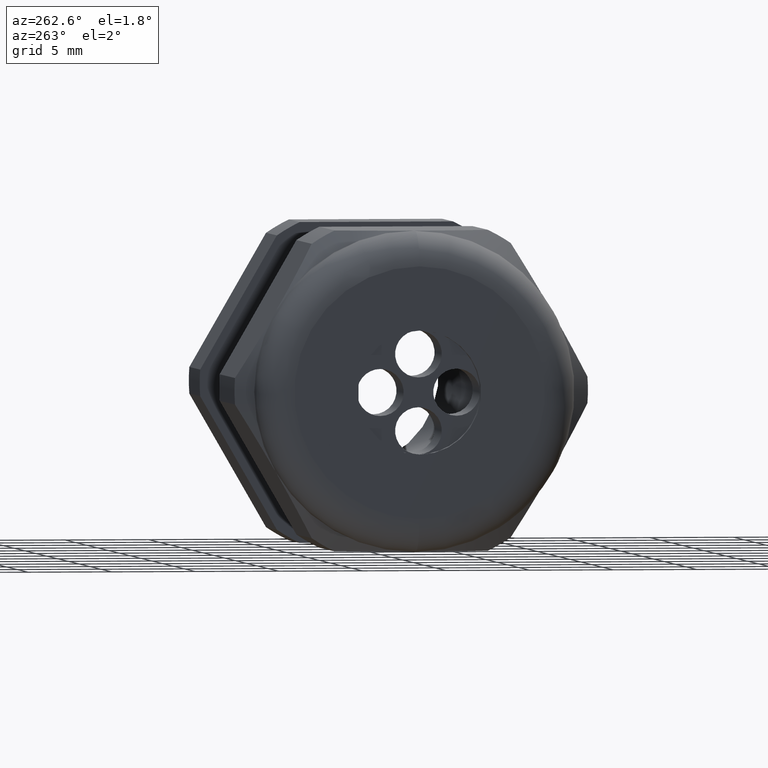
[diagram: clean part render]
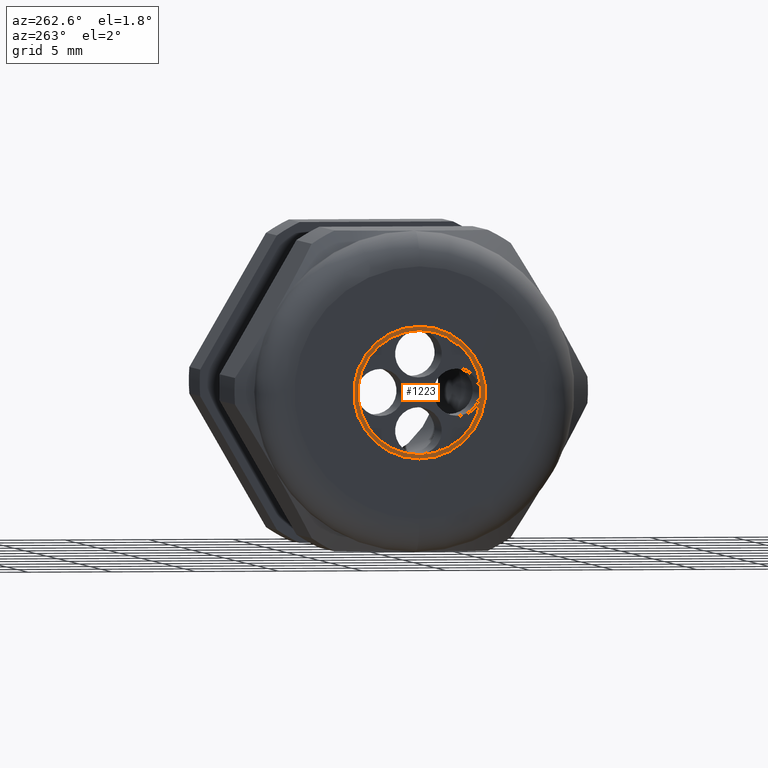
[diagram: same view with one face highlighted and labeled with its STEP entity id]
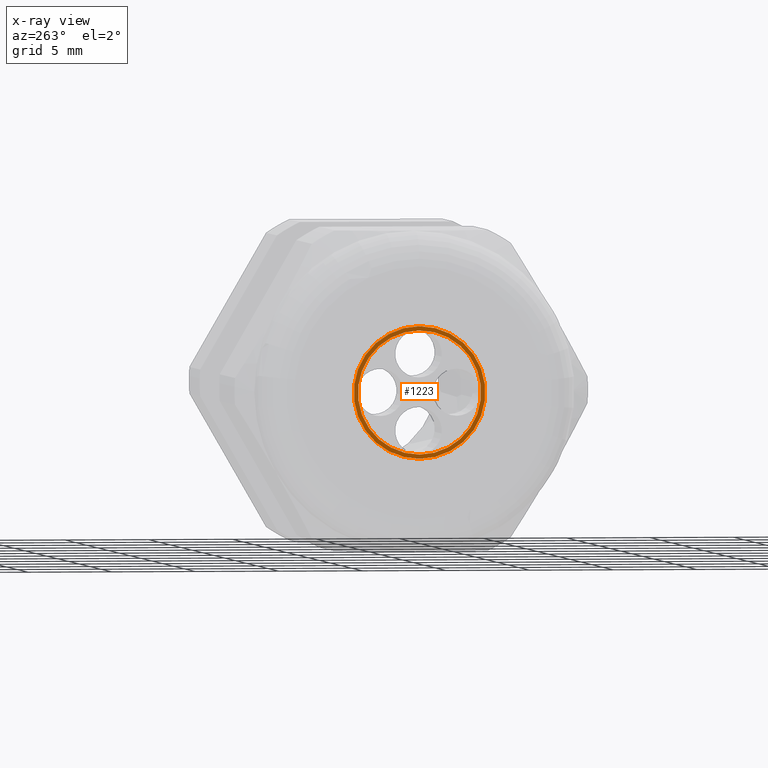
[diagram: x-ray of the same camera — body ghosted, the highlighted face saturated]
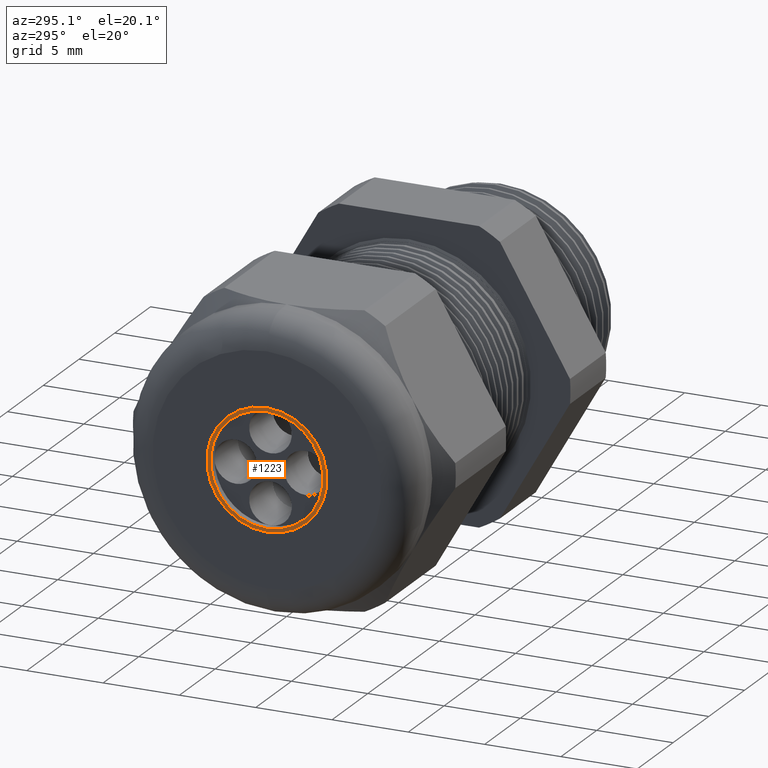
[diagram: same view with one face highlighted and labeled with its STEP entity id]
A machine part, auxiliary view. The second image highlights one B-rep face of the part: STEP entity #1223.
The next image is the same camera in x-ray: the body ghosted, the highlighted face saturated — about 0% of this face is hidden behind the body in this view.
A second angle (auxiliary view) of the same face is appended — the face is thin or edge-on in the first view.
In plain terms, the highlighted planar face has unit normal (-1, 0, 0).
Its self-contained STEP definition (entity closure, byte-faithful):
#1141 = EDGE_CURVE ( 'NONE', #1144, #1143, #3234, .T. ) ;
#1143 = VERTEX_POINT ( 'NONE', #3225 ) ;
#1144 = VERTEX_POINT ( 'NONE', #3224 ) ;
#1150 = VERTEX_POINT ( 'NONE', #3269 ) ;
#1199 = EDGE_CURVE ( 'NONE', #1143, #1144, #3322, .T. ) ;
#1208 = EDGE_CURVE ( 'NONE', #1150, #1209, #3354, .T. ) ;
#1209 = VERTEX_POINT ( 'NONE', #3355 ) ;
#1223 = ADVANCED_FACE ( 'NONE', ( #3401, #3400 ), #3399, .T. ) ;
#1224 = EDGE_LOOP ( 'NONE', ( #1233, #1235 ) ) ;
#1229 = EDGE_CURVE ( 'NONE', #1209, #1150, #3450, .T. ) ;
#1233 = ORIENTED_EDGE ( 'NONE', *, *, #1141, .T. ) ;
#1234 = EDGE_LOOP ( 'NONE', ( #1241, #1240 ) ) ;
#1235 = ORIENTED_EDGE ( 'NONE', *, *, #1199, .T. ) ;
#1240 = ORIENTED_EDGE ( 'NONE', *, *, #1208, .F. ) ;
#1241 = ORIENTED_EDGE ( 'NONE', *, *, #1229, .F. ) ;
#3224 = CARTESIAN_POINT ( 'NONE',  ( -1.289999999999999800, 0.0000000000000000000, 0.1550000000000000000 ) ) ;
#3225 = CARTESIAN_POINT ( 'NONE',  ( -1.289999999999999800, 1.898202538678397000E-017, -0.1550000000000000000 ) ) ;
#3230 = DIRECTION ( 'NONE',  ( 0.0000000000000000000, 0.0000000000000000000, 1.000000000000000000 ) ) ;
#3231 = DIRECTION ( 'NONE',  ( -1.000000000000000000, 0.0000000000000000000, 0.0000000000000000000 ) ) ;
#3232 = CARTESIAN_POINT ( 'NONE',  ( -1.289999999999999800, 0.0000000000000000000, 0.0000000000000000000 ) ) ;
#3233 = AXIS2_PLACEMENT_3D ( 'NONE', #3232, #3231, #3230 ) ;
#3234 = CIRCLE ( 'NONE', #3233, 0.1550000000000000000 ) ;
#3269 = CARTESIAN_POINT ( 'NONE',  ( -1.289999999999999800, 1.775737858763661900E-017, -0.1449999999999999900 ) ) ;
#3320 = CARTESIAN_POINT ( 'NONE',  ( -1.289999999999999800, 0.0000000000000000000, 0.0000000000000000000 ) ) ;
#3321 = AXIS2_PLACEMENT_3D ( 'NONE', #3320, #3382, #3381 ) ;
#3322 = CIRCLE ( 'NONE', #3321, 0.1550000000000000000 ) ;
#3350 = DIRECTION ( 'NONE',  ( 0.0000000000000000000, 0.0000000000000000000, 1.000000000000000000 ) ) ;
#3351 = DIRECTION ( 'NONE',  ( -1.000000000000000000, 0.0000000000000000000, 0.0000000000000000000 ) ) ;
#3352 = CARTESIAN_POINT ( 'NONE',  ( -1.289999999999999800, 0.0000000000000000000, 0.0000000000000000000 ) ) ;
#3353 = AXIS2_PLACEMENT_3D ( 'NONE', #3352, #3351, #3350 ) ;
#3354 = CIRCLE ( 'NONE', #3353, 0.1449999999999999900 ) ;
#3355 = CARTESIAN_POINT ( 'NONE',  ( -1.289999999999999800, 0.0000000000000000000, 0.1449999999999999900 ) ) ;
#3381 = DIRECTION ( 'NONE',  ( 0.0000000000000000000, 0.0000000000000000000, 1.000000000000000000 ) ) ;
#3382 = DIRECTION ( 'NONE',  ( -1.000000000000000000, 0.0000000000000000000, 0.0000000000000000000 ) ) ;
#3395 = DIRECTION ( 'NONE',  ( 0.0000000000000000000, 0.0000000000000000000, 1.000000000000000000 ) ) ;
#3396 = DIRECTION ( 'NONE',  ( -1.000000000000000000, 0.0000000000000000000, 0.0000000000000000000 ) ) ;
#3397 = CARTESIAN_POINT ( 'NONE',  ( -1.289999999999999800, 0.0000000000000000000, 0.0000000000000000000 ) ) ;
#3398 = AXIS2_PLACEMENT_3D ( 'NONE', #3397, #3396, #3395 ) ;
#3399 = PLANE ( 'NONE',  #3398 ) ;
#3400 = FACE_OUTER_BOUND ( 'NONE', #1224, .T. ) ;
#3401 = FACE_BOUND ( 'NONE', #1234, .T. ) ;
#3446 = DIRECTION ( 'NONE',  ( 0.0000000000000000000, 0.0000000000000000000, 1.000000000000000000 ) ) ;
#3447 = DIRECTION ( 'NONE',  ( -1.000000000000000000, 0.0000000000000000000, 0.0000000000000000000 ) ) ;
#3448 = CARTESIAN_POINT ( 'NONE',  ( -1.289999999999999800, 0.0000000000000000000, 0.0000000000000000000 ) ) ;
#3449 = AXIS2_PLACEMENT_3D ( 'NONE', #3448, #3447, #3446 ) ;
#3450 = CIRCLE ( 'NONE', #3449, 0.1449999999999999900 ) ;